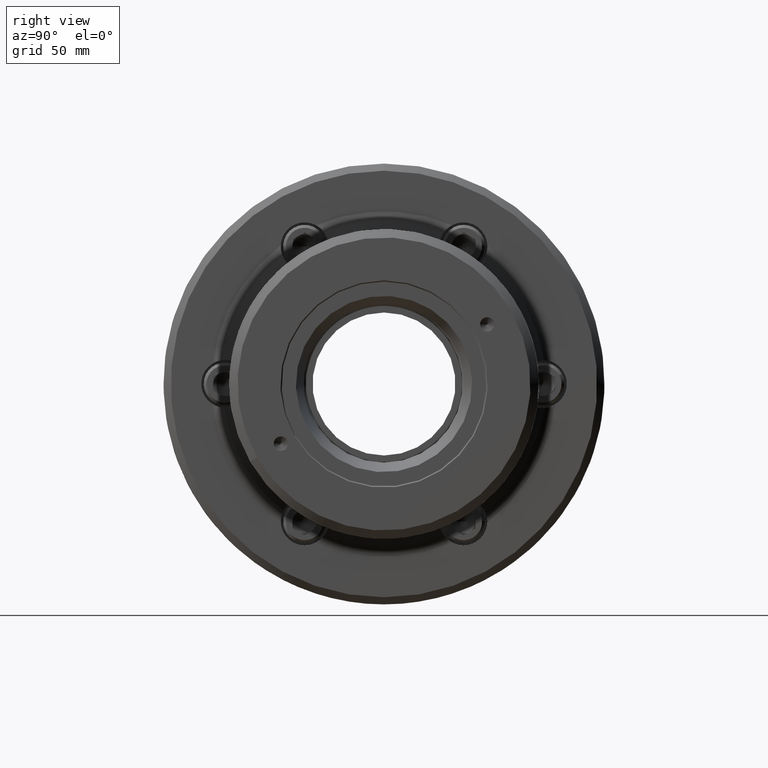
[diagram: clean part render]
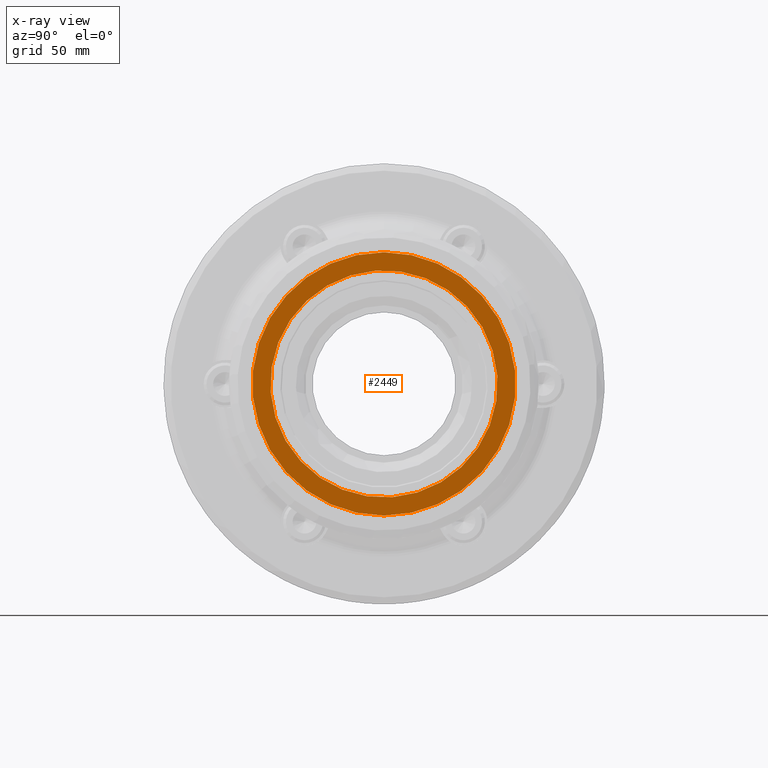
[diagram: x-ray — body ghosted, one internal face saturated and labeled with its STEP entity id]
A machine part, right view, then the same camera in x-ray: the body is ghosted and one INTERNAL B-rep face — a face not visible from any outside direction — is saturated and labeled: STEP entity #2449.
In plain terms, the highlighted planar face has unit normal (1, 0, 0).
Its self-contained STEP definition (entity closure, byte-faithful):
#92 = DIRECTION ( 'NONE',  ( 0.0000000000000000000, 0.0000000000000000000, 1.000000000000000000 ) ) ;
#100 = DIRECTION ( 'NONE',  ( 1.000000000000000000, 0.0000000000000000000, 0.0000000000000000000 ) ) ;
#306 = VERTEX_POINT ( 'NONE', #2707 ) ;
#1408 = CIRCLE ( 'NONE', #5806, 55.25000000000000000 ) ;
#1640 = EDGE_LOOP ( 'NONE', ( #7626 ) ) ;
#2319 = AXIS2_PLACEMENT_3D ( 'NONE', #7803, #2358, #4742 ) ;
#2358 = DIRECTION ( 'NONE',  ( -1.000000000000000000, -0.0000000000000000000, -0.0000000000000000000 ) ) ;
#2449 = ADVANCED_FACE ( 'NONE', ( #7358, #5524 ), #4920, .F. ) ;
#2707 = CARTESIAN_POINT ( 'NONE',  ( 26.39999999999999858, 0.0000000000000000000, 47.67128181961769684 ) ) ;
#3082 = CARTESIAN_POINT ( 'NONE',  ( 26.39999999999999503, 0.0000000000000000000, 0.0000000000000000000 ) ) ;
#3225 = DIRECTION ( 'NONE',  ( 0.0000000000000000000, 0.0000000000000000000, -1.000000000000000000 ) ) ;
#3965 = EDGE_CURVE ( 'NONE', #306, #306, #4694, .T. ) ;
#4168 = VERTEX_POINT ( 'NONE', #6599 ) ;
#4279 = CARTESIAN_POINT ( 'NONE',  ( 26.39999999999999858, 55.25000000000000000, 0.0000000000000000000 ) ) ;
#4694 = CIRCLE ( 'NONE', #2319, 47.67128181961769684 ) ;
#4742 = DIRECTION ( 'NONE',  ( 0.0000000000000000000, 0.0000000000000000000, 1.000000000000000000 ) ) ;
#4920 = PLANE ( 'NONE',  #5579 ) ;
#5517 = DIRECTION ( 'NONE',  ( -1.000000000000000000, -0.0000000000000000000, -0.0000000000000000000 ) ) ;
#5524 = FACE_OUTER_BOUND ( 'NONE', #1640, .T. ) ;
#5579 = AXIS2_PLACEMENT_3D ( 'NONE', #4279, #100, #3225 ) ;
#5806 = AXIS2_PLACEMENT_3D ( 'NONE', #3082, #5517, #92 ) ;
#6599 = CARTESIAN_POINT ( 'NONE',  ( 26.39999999999999503, 0.0000000000000000000, 55.25000000000000000 ) ) ;
#7299 = EDGE_CURVE ( 'NONE', #4168, #4168, #1408, .T. ) ;
#7301 = EDGE_LOOP ( 'NONE', ( #7618 ) ) ;
#7358 = FACE_BOUND ( 'NONE', #7301, .T. ) ;
#7618 = ORIENTED_EDGE ( 'NONE', *, *, #3965, .F. ) ;
#7626 = ORIENTED_EDGE ( 'NONE', *, *, #7299, .T. ) ;
#7803 = CARTESIAN_POINT ( 'NONE',  ( 26.39999999999999858, 0.0000000000000000000, 0.0000000000000000000 ) ) ;